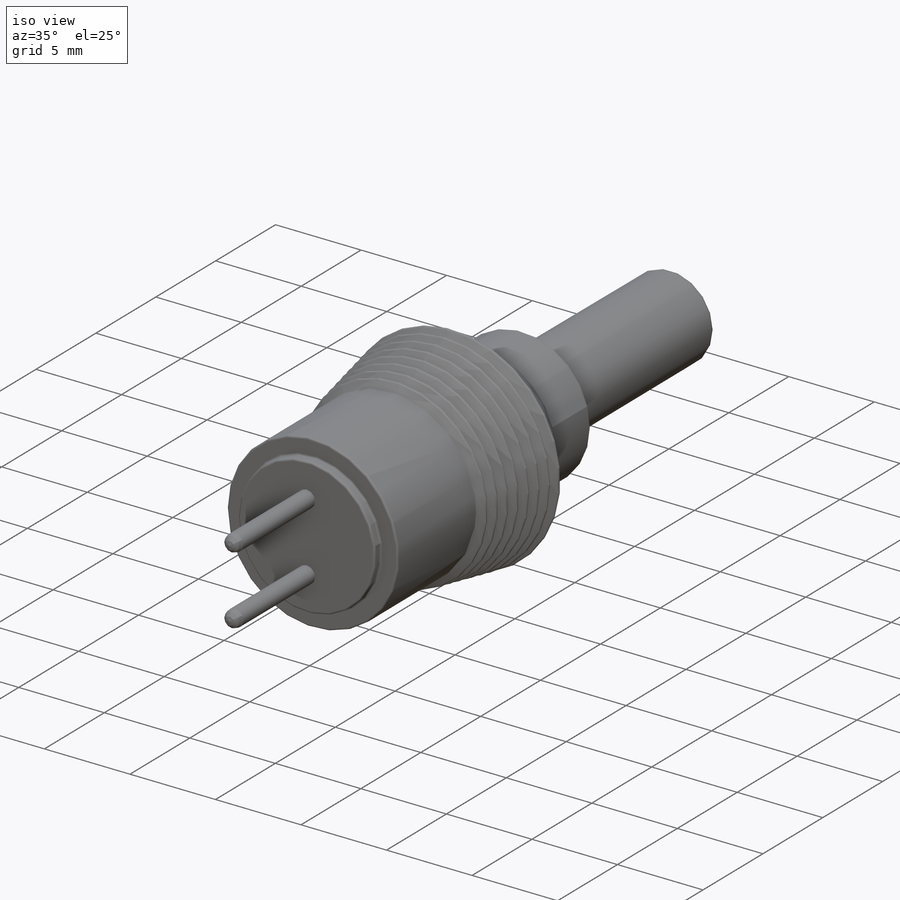
[diagram: iso view]
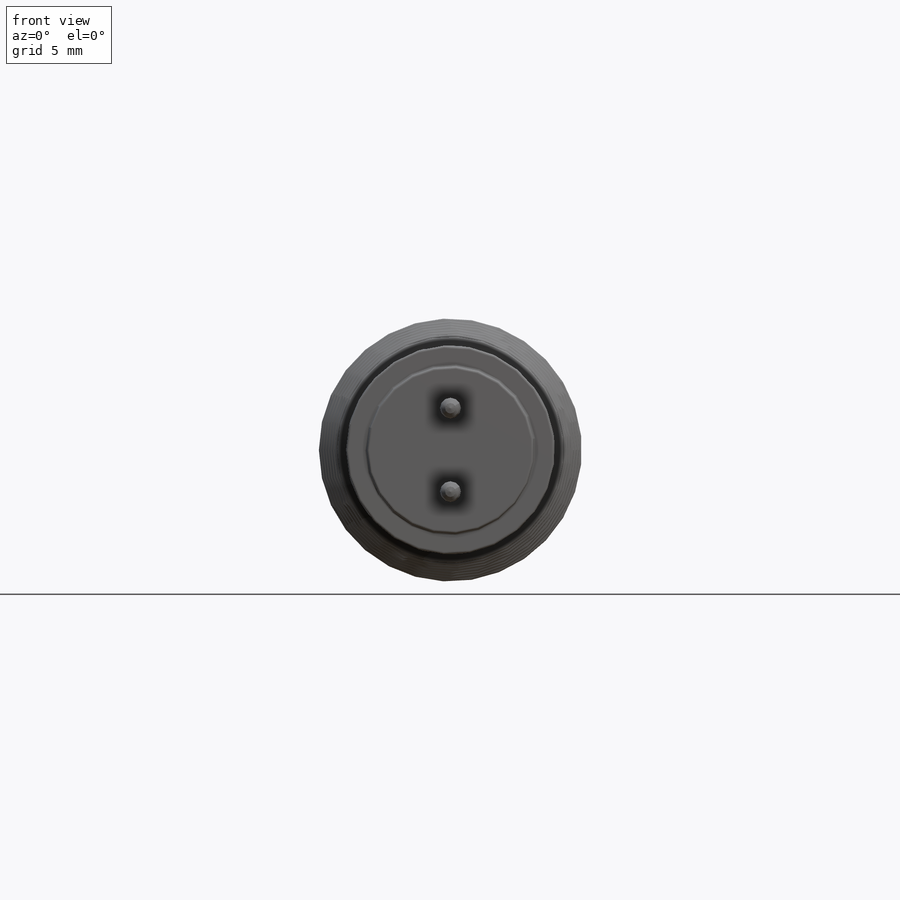
[diagram: front view]
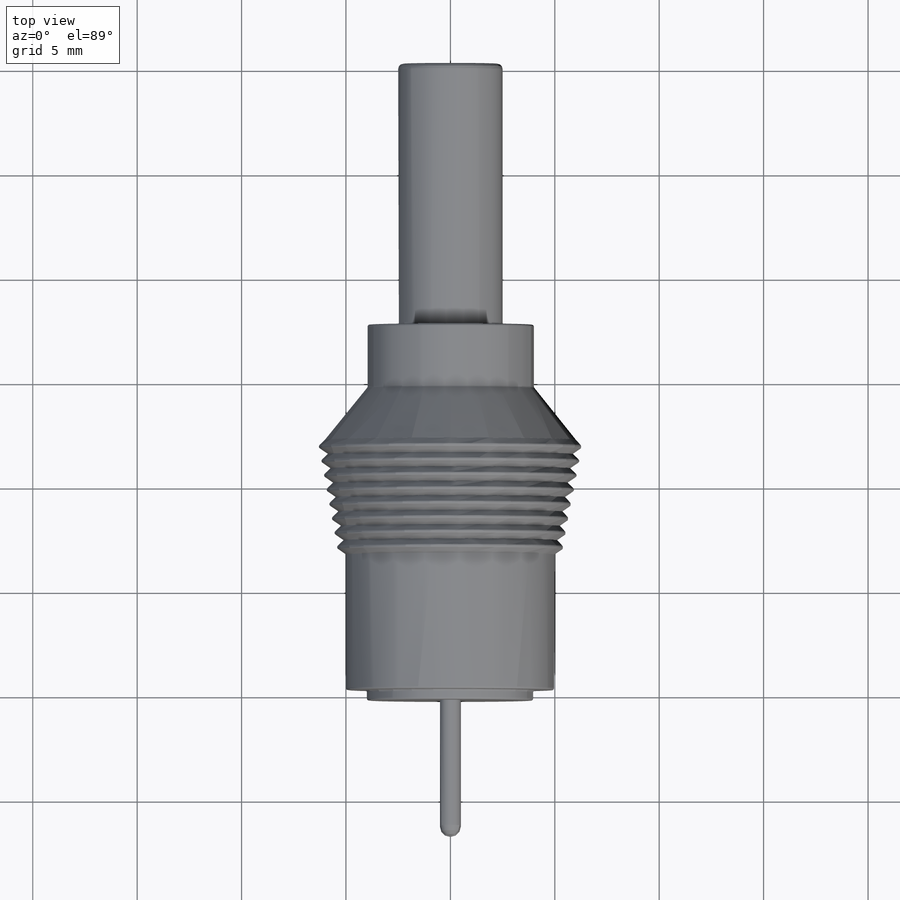
[diagram: top view]
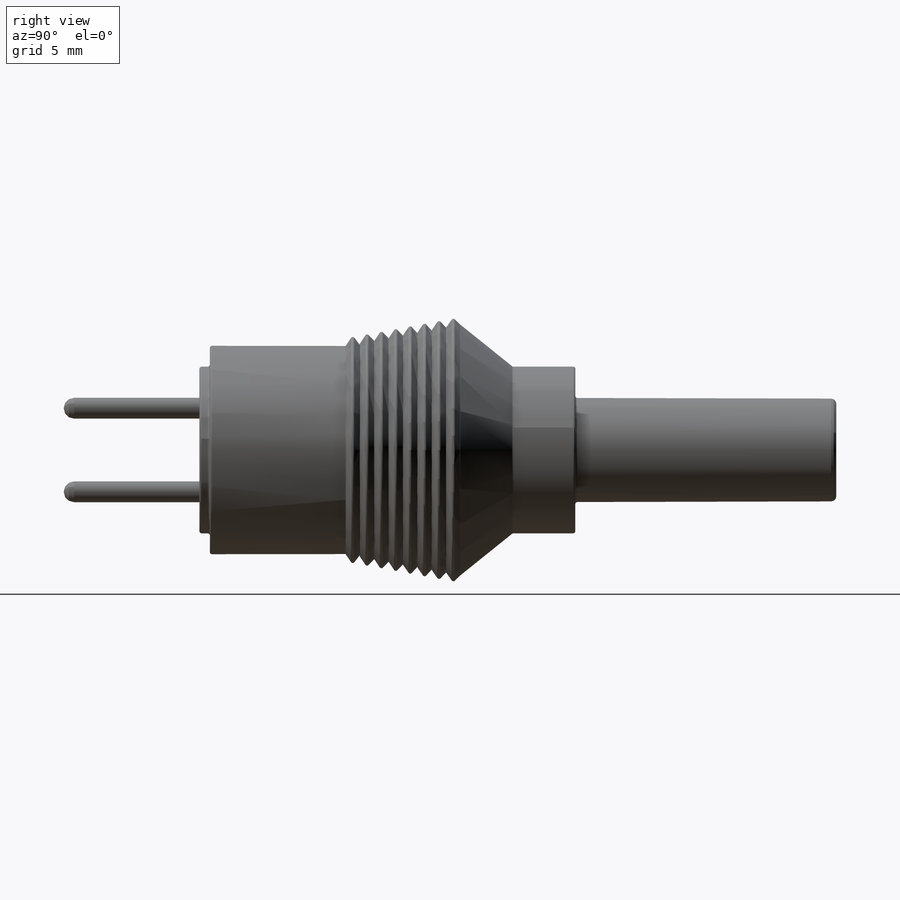
[diagram: right view]
SOLIDWORKS PART (.sldprt)
format: sldprt  version: not decoded by parser v0  size: 288,256 bytes
history: native  units: mm
features: fillet x4, sketch x3, material x1, revolve x1, cut_extrude x1, extrude x1 (+11 scaffold rows collapsed)
feature tree (22):
  scaffold x11  (default folders/planes/origin — collapsed)
  material  "Material <not specified>"
  sketch  "Sketch1"  dims[c1.D1=30.5mm c1.D2=18.0mm c1.D3=5.0mm c1.D4=6.0mm c1.D5=12.5mm c1.D6=7.0mm c1.D7=3.0mm c1.D8=4.0mm c1.D9=2.5mm c1.D10=1.0mm c2.D10=~10.304846deg c2.D11=0.5mm c3.D10=8.0]
  revolve  "Revolve1"  Angle=360deg
  sketch  "Sketch2"  dims[D1=3.5mm]
  cut_extrude  "Cut-Extrude1"  Depth=12mm
  fillet  "Fillet1"  Radius=0.1mm
  fillet  "Fillet2"  Radius=0.25mm
  fillet  "Fillet3"  Radius=0.1mm
  sketch  "Sketch3"  dims[D1=1.0mm D2=2.0mm D3=2.0mm]
  extrude  "Boss-Extrude1"  Depth=6.5mm
  fillet  "Fillet4"  Radius=0.5mm
decode coverage: 10 of 10 modeling features carry decoded parameters
note: ~ marks probable driven/reference dimensions
note: suppression state not decoded; provenance and decode notes live in map.json
